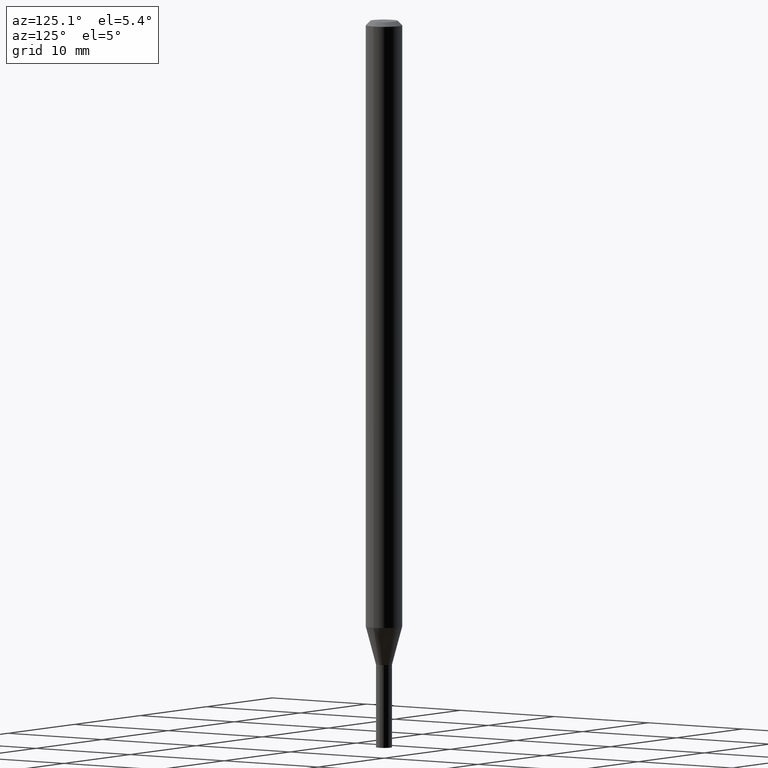
[diagram: clean part render]
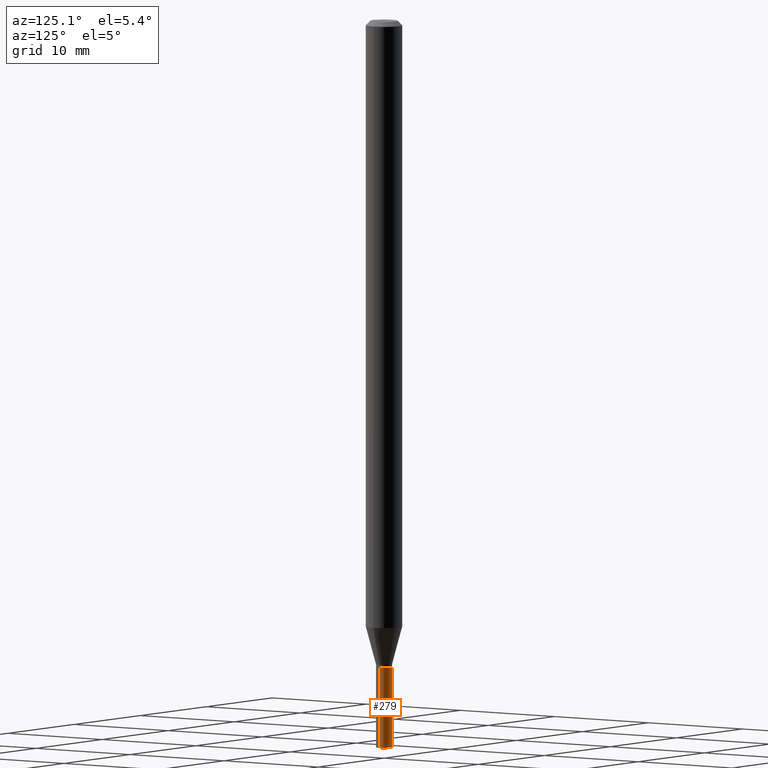
[diagram: same view with one face highlighted and labeled with its STEP entity id]
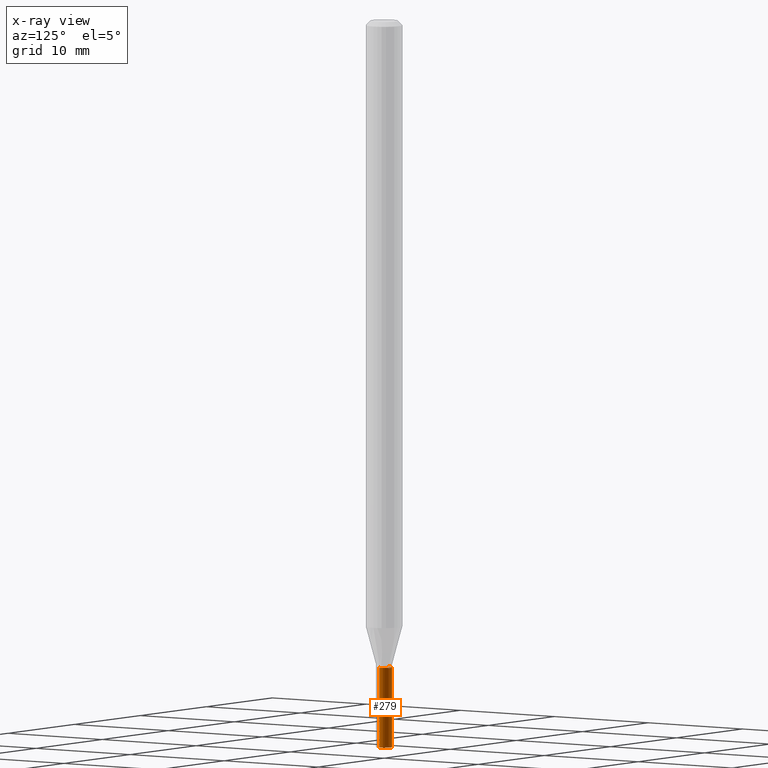
[diagram: x-ray of the same camera — body ghosted, the highlighted face saturated]
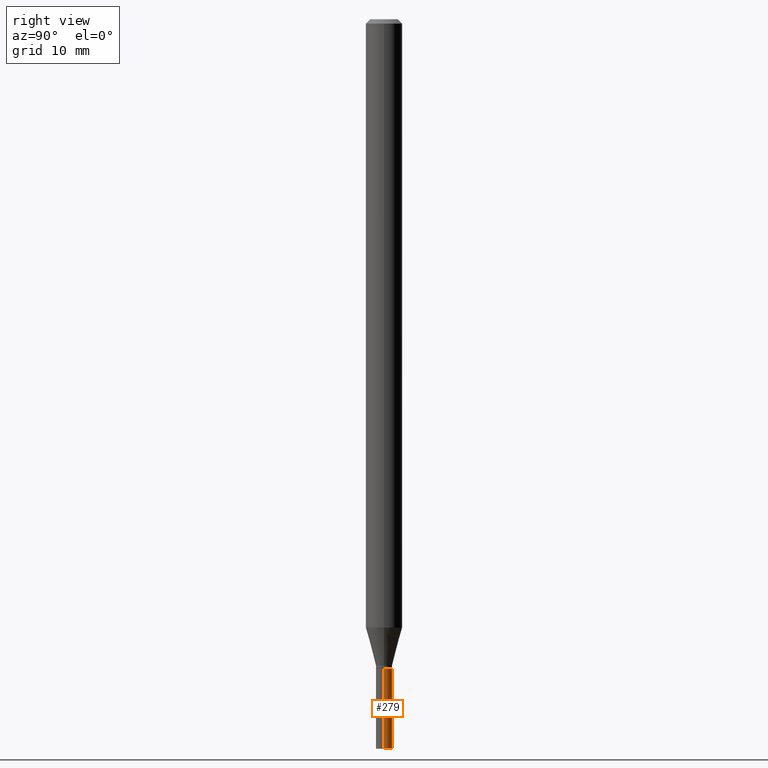
[diagram: same view with one face highlighted and labeled with its STEP entity id]
A machine part, auxiliary view. The second image highlights one B-rep face of the part: STEP entity #279.
The next image is the same camera in x-ray: the body ghosted, the highlighted face saturated — about 0% of this face is hidden behind the body in this view.
A second angle (right view) of the same face is appended — the face is thin or edge-on in the first view.
In plain terms, the highlighted cylindrical surface (edge-blend (fillet) strip) has radius 0.6985 mm, axis along (-0, 0, 1).
Its self-contained STEP definition (entity closure, byte-faithful):
#6 = AXIS2_PLACEMENT_3D ( 'NONE', #265, #425, #62 ) ;
#10 = VERTEX_POINT ( 'NONE', #86 ) ;
#13 = ORIENTED_EDGE ( 'NONE', *, *, #132, .F. ) ;
#25 = DIRECTION ( 'NONE',  ( -2.445468806185136597E-29, 3.491481338843145583E-15, 1.000000000000000000 ) ) ;
#35 = DIRECTION ( 'NONE',  ( 1.000000000000000000, -6.982962677686244622E-15, 0.000000000000000000 ) ) ;
#62 = DIRECTION ( 'NONE',  ( 1.000000000000000000, -6.982962677686279332E-15, 0.000000000000000000 ) ) ;
#63 = ORIENTED_EDGE ( 'NONE', *, *, #67, .T. ) ;
#66 = VECTOR ( 'NONE', #332, 39.37007874015748143 ) ;
#67 = EDGE_CURVE ( 'NONE', #88, #139, #421, .T. ) ;
#86 = CARTESIAN_POINT ( 'NONE',  ( 0.02750000000000000014, -7.960577452562371818E-15, -2.225000000000000089 ) ) ;
#88 = VERTEX_POINT ( 'NONE', #310 ) ;
#90 = EDGE_CURVE ( 'NONE', #10, #439, #446, .T. ) ;
#106 = LINE ( 'NONE', #175, #66 ) ;
#132 = EDGE_CURVE ( 'NONE', #88, #10, #106, .T. ) ;
#137 = CARTESIAN_POINT ( 'NONE',  ( -0.02750000000000000014, -8.053225410682903621E-15, -2.500000000000000000 ) ) ;
#139 = VERTEX_POINT ( 'NONE', #137 ) ;
#153 = VECTOR ( 'NONE', #331, 39.37007874015748143 ) ;
#175 = CARTESIAN_POINT ( 'NONE',  ( 0.02750000000000000014, -1.920314736363723444E-16, 1.340948613343882413E-30 ) ) ;
#178 = CARTESIAN_POINT ( 'NONE',  ( -0.02750000000000000014, 1.953992523340275521E-16, -1.352707149820099181E-30 ) ) ;
#186 = DIRECTION ( 'NONE',  ( -2.445468806185136597E-29, 3.491481338843145583E-15, 1.000000000000000000 ) ) ;
#229 = CARTESIAN_POINT ( 'NONE',  ( 0.000000000000000000, 0.000000000000000000, 0.000000000000000000 ) ) ;
#256 = ORIENTED_EDGE ( 'NONE', *, *, #411, .T. ) ;
#261 = CARTESIAN_POINT ( 'NONE',  ( 6.113672015462842613E-29, -8.728703347107864943E-15, -2.500000000000000000 ) ) ;
#265 = CARTESIAN_POINT ( 'NONE',  ( 5.441168093761929600E-29, -7.768545978925998537E-15, -2.225000000000000089 ) ) ;
#267 = EDGE_LOOP ( 'NONE', ( #63, #256, #366, #13 ) ) ;
#279 = ADVANCED_FACE ( 'NONE', ( #376 ), #413, .T. ) ;
#310 = CARTESIAN_POINT ( 'NONE',  ( 0.02750000000000000014, -8.920734820744236646E-15, -2.500000000000000000 ) ) ;
#331 = DIRECTION ( 'NONE',  ( -2.445468806185136877E-29, 3.491481338843145188E-15, 1.000000000000000000 ) ) ;
#332 = DIRECTION ( 'NONE',  ( -2.445468806185136877E-29, 3.491481338843145188E-15, 1.000000000000000000 ) ) ;
#342 = DIRECTION ( 'NONE',  ( 1.000000000000000000, -6.982962677686266711E-15, 4.876176775795935793E-29 ) ) ;
#366 = ORIENTED_EDGE ( 'NONE', *, *, #90, .F. ) ;
#368 = LINE ( 'NONE', #178, #153 ) ;
#374 = AXIS2_PLACEMENT_3D ( 'NONE', #229, #186, #342 ) ;
#376 = FACE_OUTER_BOUND ( 'NONE', #267, .T. ) ;
#406 = CARTESIAN_POINT ( 'NONE',  ( -0.02750000000000000014, -8.053225410682903621E-15, -2.225000000000000089 ) ) ;
#411 = EDGE_CURVE ( 'NONE', #139, #439, #368, .T. ) ;
#413 = CYLINDRICAL_SURFACE ( 'NONE', #374, 0.02750000000000000014 ) ;
#421 = CIRCLE ( 'NONE', #437, 0.02750000000000000014 ) ;
#425 = DIRECTION ( 'NONE',  ( -2.445468806185136597E-29, 3.491481338843145583E-15, 1.000000000000000000 ) ) ;
#437 = AXIS2_PLACEMENT_3D ( 'NONE', #261, #25, #35 ) ;
#439 = VERTEX_POINT ( 'NONE', #406 ) ;
#446 = CIRCLE ( 'NONE', #6, 0.02750000000000000014 ) ;